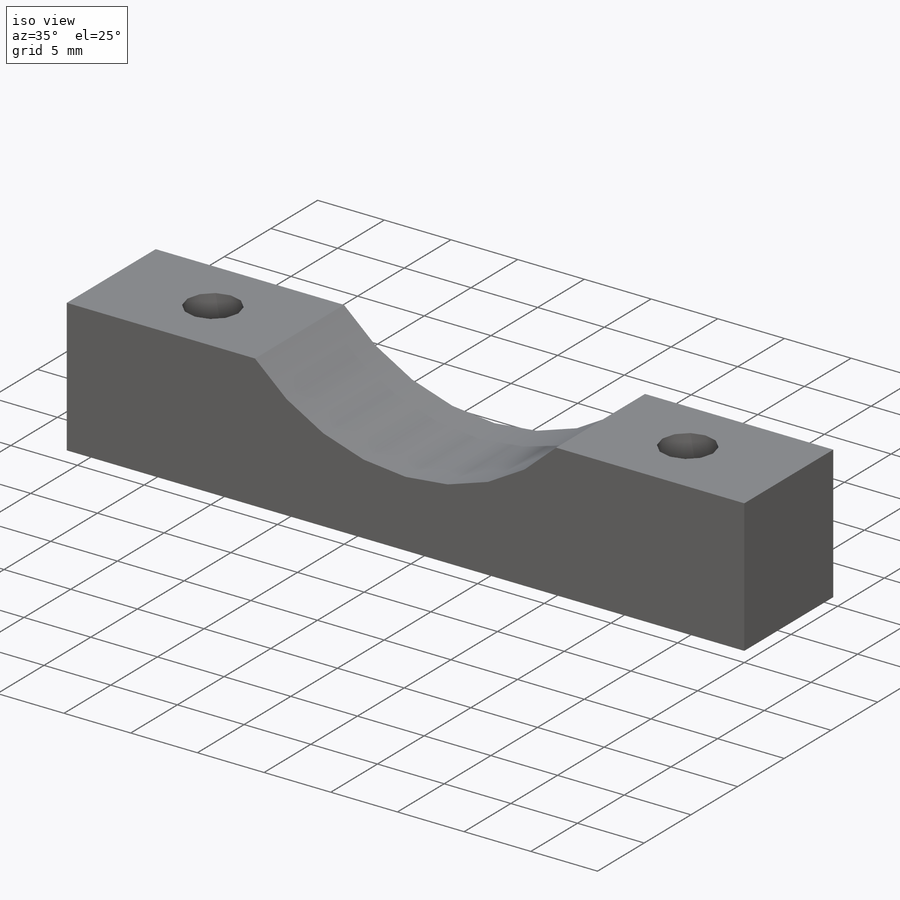
[diagram: iso view]
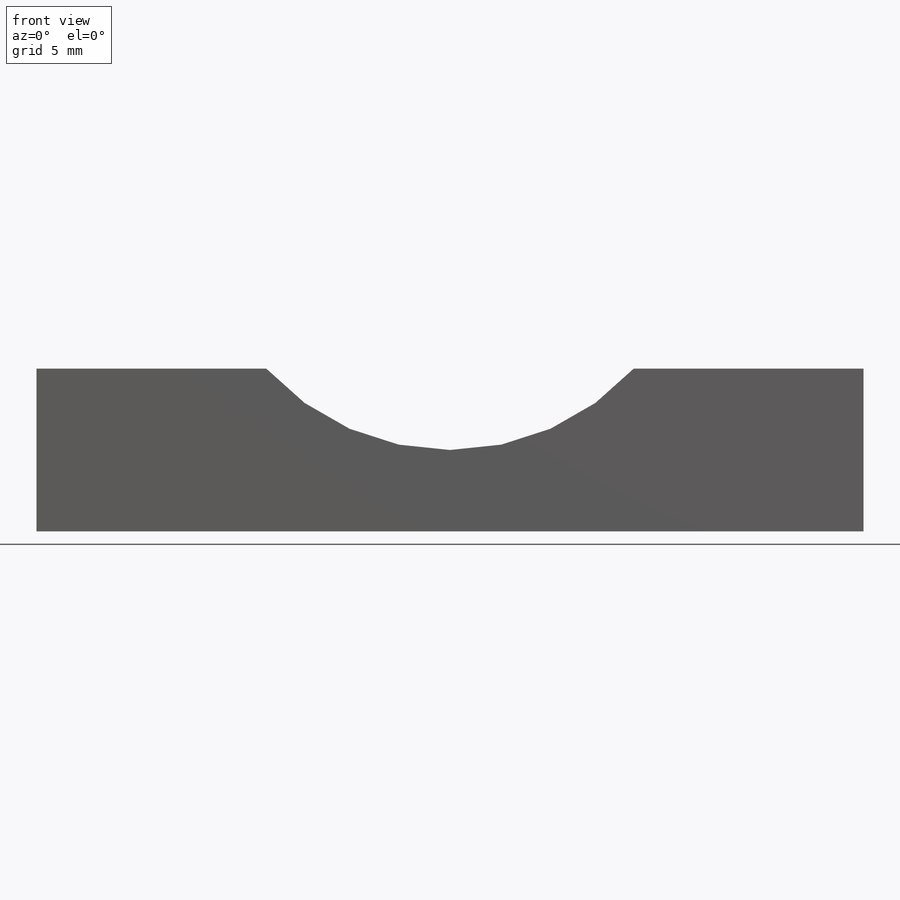
[diagram: front view]
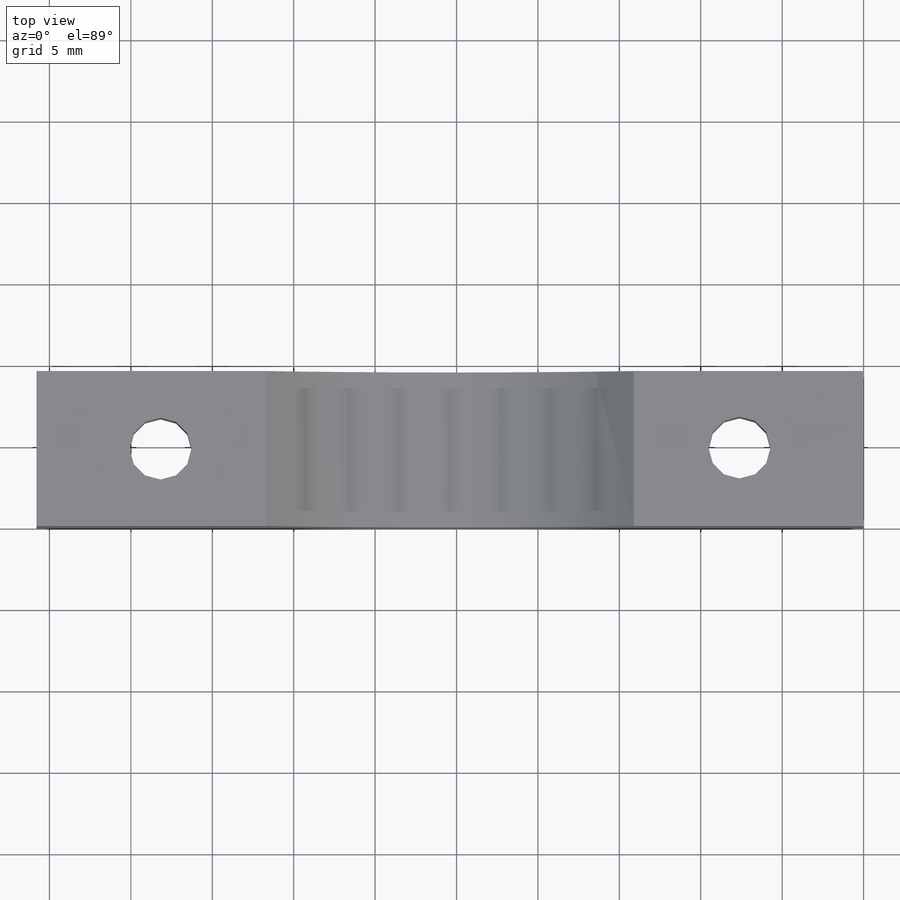
[diagram: top view]
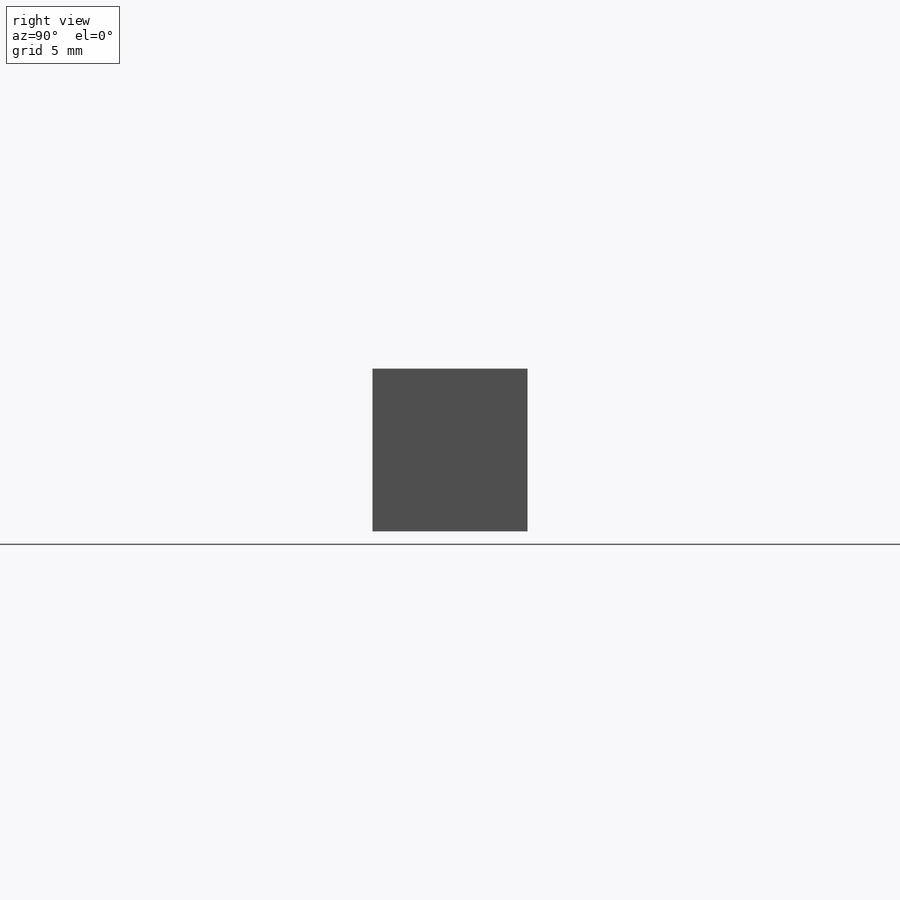
[diagram: right view]
SOLIDWORKS PART (.sldprt)
format: sldprt  version: not decoded by parser v0  size: 182,272 bytes
history: native  units: mm
features: plane x4, sketch x4, material x1, extrude x1, cut_extrude x1, hole x1 + 1 further entry (+7 scaffold rows collapsed)
feature tree (20):
  scaffold x7  (default folders/planes/origin — collapsed)
  material  "Material <not specified>"
  plane  "정면"
  plane  "윗면"
  plane  "우측면"
  "원점"
  sketch  "Sketch1"  dims[D1=9.525mm D2=50.8mm]
  extrude  "Extrude1"  Depth=10mm
  sketch  "Sketch2"  dims[D1=15.24mm]
  cut_extrude  "Cut-Extrude1"  [1 undecoded]
  plane  "Plane1"  Offset=25mm
  hole  "CBORE for #6 Socket Head Cap Screw1"  Diameter=3.7973mm Depth=10mm
  sketch  "3DSketch1"  dims[c1.D1=7.62mm c1.D2=4.7625mm c1.D3=~5.324646mm c1.D5=5.0mm c1.D4=35.56mm c2.D5=6.82mm c2.D3=4.826mm]
  sketch  "Sketch3"  dims[hole-wizard template sketch: 42 standard entries collapsed; hole parameters kept: c12.Thru Hole Depth=10.0mm c12.C'Bore Dia.=~7.14502mm c12.C'Bore Depth=3.5052mm]
decode coverage: 6 of 7 modeling features carry decoded parameters; 1 rows unclassified (native names shown)
note: ~ marks probable driven/reference dimensions
note: 1 parameter value undecoded
note: suppression state not decoded; provenance and decode notes live in map.json
